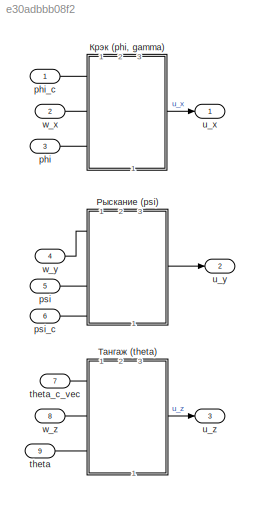
MODEL slx_e30adbbb08f2
KIND model
CONFIG AbsTol = auto
CONFIG EnableMultiTasking = off
CONFIG FixedStep = auto
CONFIG MaxStep = auto
CONFIG MinStep = auto
CONFIG RelTol = 1e-3
CONFIG SampleTimeConstraint = Unconstrained
CONFIG Solver = VariableStepAuto
CONFIG SolverName = VariableStepAuto
CONFIG StartTime = 0.0
CONFIG StopTime = 10.0
BLOCK [Inport] phi
  Port = 3
BLOCK [Inport] phi_c
BLOCK [Inport] psi
  Port = 5
BLOCK [Inport] psi_c
  Port = 6
BLOCK [Inport] theta
  Port = 9
BLOCK [Inport] theta_c_vec
  Port = 7
BLOCK [Outport] u_x
BLOCK [Outport] u_y
  Port = 2
BLOCK [Outport] u_z
  Port = 3
BLOCK [Inport] w_x
  Port = 2
BLOCK [Inport] w_y
  Port = 4
BLOCK [Inport] w_z
  Port = 8
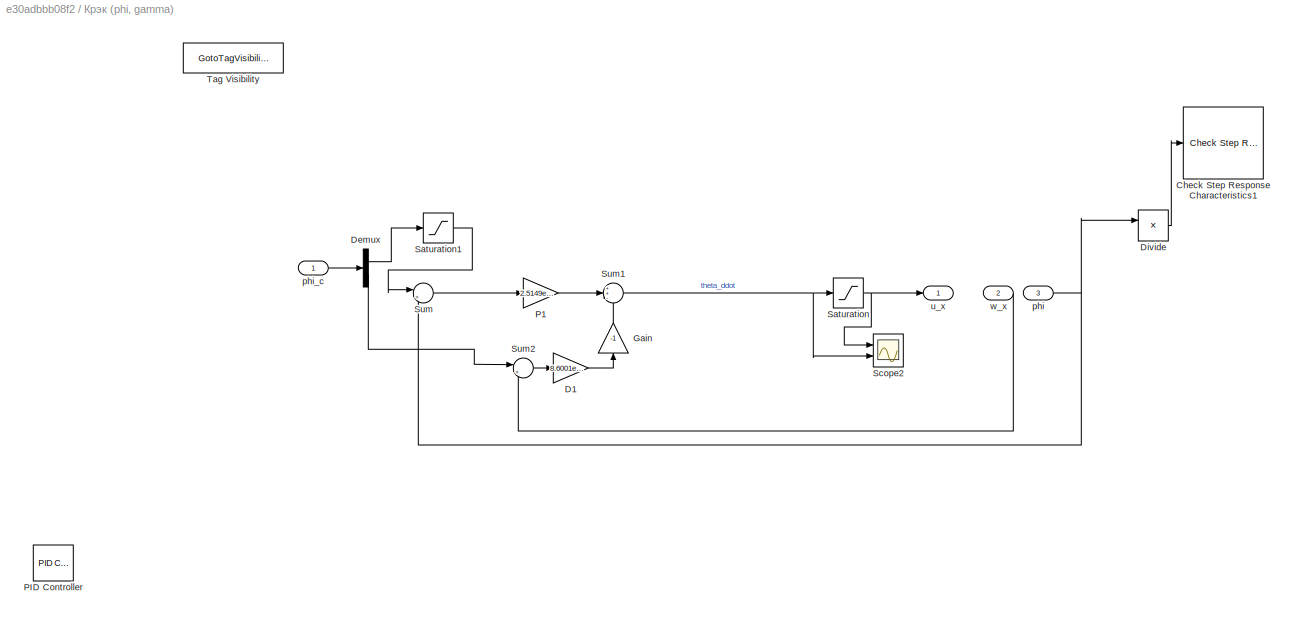
BLOCK [SubSystem] Крэк (phi, gamma)
  PortSchema = {"entries":[{"content":{"sides":[{"content":{"connectorIds":[]},"type":"ConnectorPlacement.EquallySpacedRectSide","uuid":"a258f665-a86a-4482-bd07-3187ea478656"},{"content":{"connectorIds":[],"side":"RIGHT"},"type":"ConnectorPlacement.EquallySpacedRectSide","uuid":"4cc1ffc1-e5d7-4190-ba75-89ce977e4acc"},{"content":{"connectorIds":["Out1"],"side":"TOP"},"type":"ConnectorPlacement.EquallySpacedRectSi...<+398ch>  <repeated x3 — deduplicated; at blocks: Крэк (phi, gamma), Рыскание (psi), Тангаж (theta)>
  Ports = [3, 1]
  RequestExecContextInheritance = off
BLOCK [Reference] Крэк (phi, gamma)/Check Step Response Characteristics1  REF=checkpacklib/Check Step Response 
Characteristics
  Commented = on
  InstantiateOnLoad = on
  Ports = [1]
  SourceBlock = checkpacklib/Check Step Response \nCharacteristics
  SourceProductBaseCode = CT,ID,MT,SO
  SourceType = Checks_StepResponse
BLOCK [Gain] Крэк (phi, gamma)/D1
  Gain = 8.6001e+07
BLOCK [Demux] Крэк (phi, gamma)/Demux
  Outputs = 2
  Ports = [1, 2]
BLOCK [Product] Крэк (phi, gamma)/Divide
  Commented = on
  Inputs = */
  Ports = [2, 1]
BLOCK [Gain] Крэк (phi, gamma)/Gain
  Gain = -1
  NameLocation = right
BLOCK [Gain] Крэк (phi, gamma)/P1
  Gain = 2.5149e+09
BLOCK [Reference] Крэк (phi, gamma)/PID Controller  REF=simulink/Continuous/PID Controller
  Commented = on
  Ports = [1, 1]
  SourceBlock = simulink/Continuous/PID Controller
  SourceProductBaseCode = SL
  SourceType = PID 1dof
BLOCK [Saturate] Крэк (phi, gamma)/Saturation
  LowerLimit = -MAV.Control.u_xz_max
  UpperLimit = MAV.Control.u_xz_max
BLOCK [Saturate] Крэк (phi, gamma)/Saturation1
  LowerLimit = -deg2rad(90)
  UpperLimit = deg2rad(90)
BLOCK [Scope] Крэк (phi, gamma)/Scope2
  Floating = off
  NumInputPorts = 2
  Ports = [2]
  ScopeSpecificationString = Simulink.scopes.TimeScopeBlockCfg('CurrentConfiguration', extmgr.ConfigurationSet(extmgr.Configuration('Core','General UI',true),extmgr.Configuration('Core','Source UI',true),extmgr.Configuration('Sources','WiredSimulink',true,'DataLoggingVariableName','ScopeData4'),extmgr.Configuration('Visuals','Time Domain',true,'SerializedDisplays',{struct('MinYLimReal','-938857971.23867','MaxYLimReal','274798...<+1514ch>
BLOCK [Sum] Крэк (phi, gamma)/Sum
  Inputs = |+-
  Ports = [2, 1]
BLOCK [Sum] Крэк (phi, gamma)/Sum1
  Inputs = ++-
  Ports = [3, 1]
BLOCK [Sum] Крэк (phi, gamma)/Sum2
  Inputs = |+-
  Ports = [2, 1]
BLOCK [GotoTagVisibility] Крэк (phi, gamma)/Tag Visibility
  GotoTag = phi_flush_integrator
BLOCK [Inport] Крэк (phi, gamma)/phi
  Port = 3
BLOCK [Inport] Крэк (phi, gamma)/phi_c
BLOCK [Outport] Крэк (phi, gamma)/u_x
BLOCK [Inport] Крэк (phi, gamma)/w_x
  Port = 2
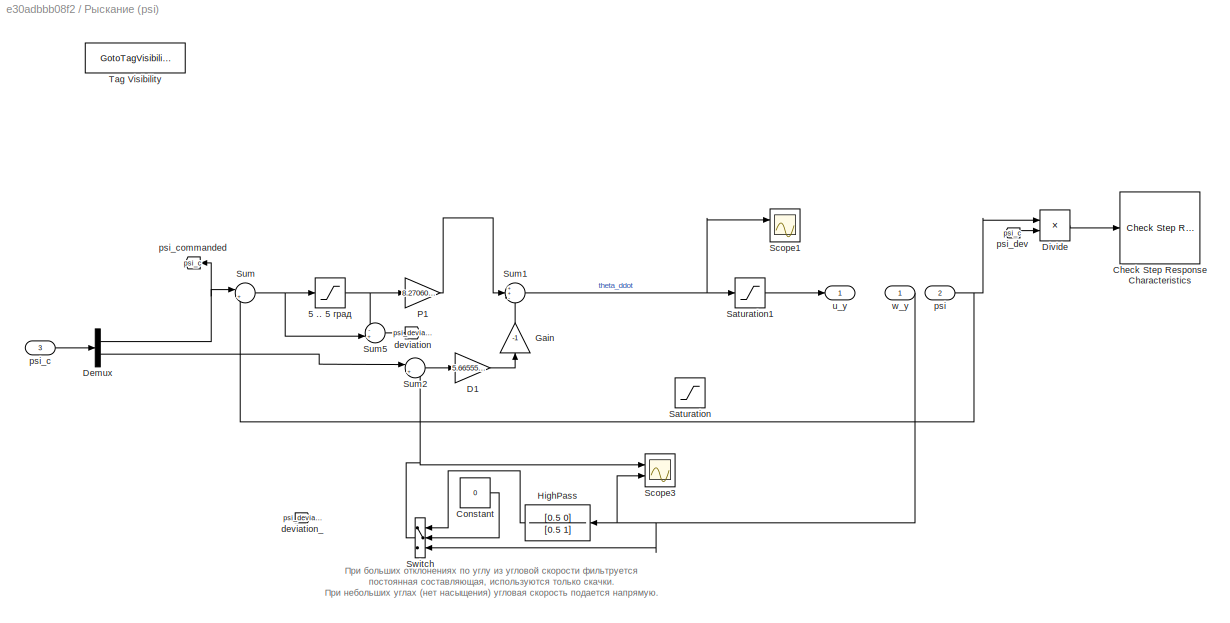
BLOCK [SubSystem] Рыскание (psi)
  Ports = [3, 1]
  RequestExecContextInheritance = off
BLOCK [Saturate] Рыскание (psi)/5 .. 5 град
  LowerLimit = -deg2rad(5)
  UpperLimit = deg2rad(5)
BLOCK [Reference] Рыскание (psi)/Check Step Response Characteristics  REF=checkpacklib/Check Step Response 
Characteristics
  Commented = on
  InstantiateOnLoad = on
  Ports = [1]
  SourceBlock = checkpacklib/Check Step Response \nCharacteristics
  SourceProductBaseCode = CT,ID,MT,SO
  SourceType = Checks_StepResponse
BLOCK [Constant] Рыскание (psi)/Constant
  Value = 0
BLOCK [Gain] Рыскание (psi)/D1
  Gain = 5.665551201959327e+08
BLOCK [Demux] Рыскание (psi)/Demux
  Outputs = 2
  Ports = [1, 2]
BLOCK [Product] Рыскание (psi)/Divide
  Commented = on
  Inputs = */
  Ports = [2, 1]
BLOCK [Gain] Рыскание (psi)/Gain
  Gain = -1
  NameLocation = right
BLOCK [TransferFcn] Рыскание (psi)/HighPass
  Denominator = [0.5 1]
  NameLocation = top
  Numerator = [0.5 0]
BLOCK [Gain] Рыскание (psi)/P1
  Gain = 8.270607507605886e+09
BLOCK [Saturate] Рыскание (psi)/Saturation
  Commented = on
  LowerLimit = -449800000
  UpperLimit = 449800000
BLOCK [Saturate] Рыскание (psi)/Saturation1
  LowerLimit = -449800000
  UpperLimit = 449800000
BLOCK [Scope] Рыскание (psi)/Scope1
  Floating = off
  NumInputPorts = 2
  Ports = [2]
  ScopeSpecificationString = Simulink.scopes.TimeScopeBlockCfg('CurrentConfiguration', extmgr.ConfigurationSet(extmgr.Configuration('Core','General UI',true),extmgr.Configuration('Core','Source UI',true),extmgr.Configuration('Sources','WiredSimulink',true,'DataLoggingVariableName','ScopeData3'),extmgr.Configuration('Visuals','Time Domain',true,'SerializedDisplays',{struct('MinYLimReal','-319240052.07808','MaxYLimReal','319973...<+1516ch>
BLOCK [Scope] Рыскание (psi)/Scope3
  Floating = off
  NumInputPorts = 2
  Ports = [2]
  ScopeSpecificationString = Simulink.scopes.TimeScopeBlockCfg('CurrentConfiguration', extmgr.ConfigurationSet(extmgr.Configuration('Core','General UI',true),extmgr.Configuration('Core','Source UI',true),extmgr.Configuration('Sources','WiredSimulink',true,'DataLoggingVariableName','ScopeData1'),extmgr.Configuration('Visuals','Time Domain',true,'SerializedDisplays',{struct('MinYLimReal','-8.42835','MaxYLimReal','19.20686','YLa...<+1442ch>
BLOCK [Sum] Рыскание (psi)/Sum
  Inputs = |+-
  Ports = [2, 1]
BLOCK [Sum] Рыскание (psi)/Sum1
  Inputs = ++-
  Ports = [3, 1]
BLOCK [Sum] Рыскание (psi)/Sum2
  Inputs = |+-
  Ports = [2, 1]
BLOCK [Sum] Рыскание (psi)/Sum5
  Inputs = -+|
  Ports = [2, 1]
BLOCK [Switch] Рыскание (psi)/Switch
  Criteria = u2 > Threshold
  InputSameDT = off
  NameLocation = top
  SaturateOnIntegerOverflow = off
BLOCK [GotoTagVisibility] Рыскание (psi)/Tag Visibility
  GotoTag = psi_flush_integrator
BLOCK [Goto] Рыскание (psi)/deviation
  GotoTag = psi_deviation_nonlinearity
BLOCK [From] Рыскание (psi)/deviation_
  GotoTag = psi_deviation_nonlinearity
  NameLocation = top
BLOCK [Inport] Рыскание (psi)/psi
  Port = 2
BLOCK [Inport] Рыскание (psi)/psi_c
  Port = 3
BLOCK [Goto] Рыскание (psi)/psi_commanded
  GotoTag = psi_c
  NameLocation = top
BLOCK [From] Рыскание (psi)/psi_dev
  GotoTag = psi_c
BLOCK [Outport] Рыскание (psi)/u_y
BLOCK [Inport] Рыскание (psi)/w_y
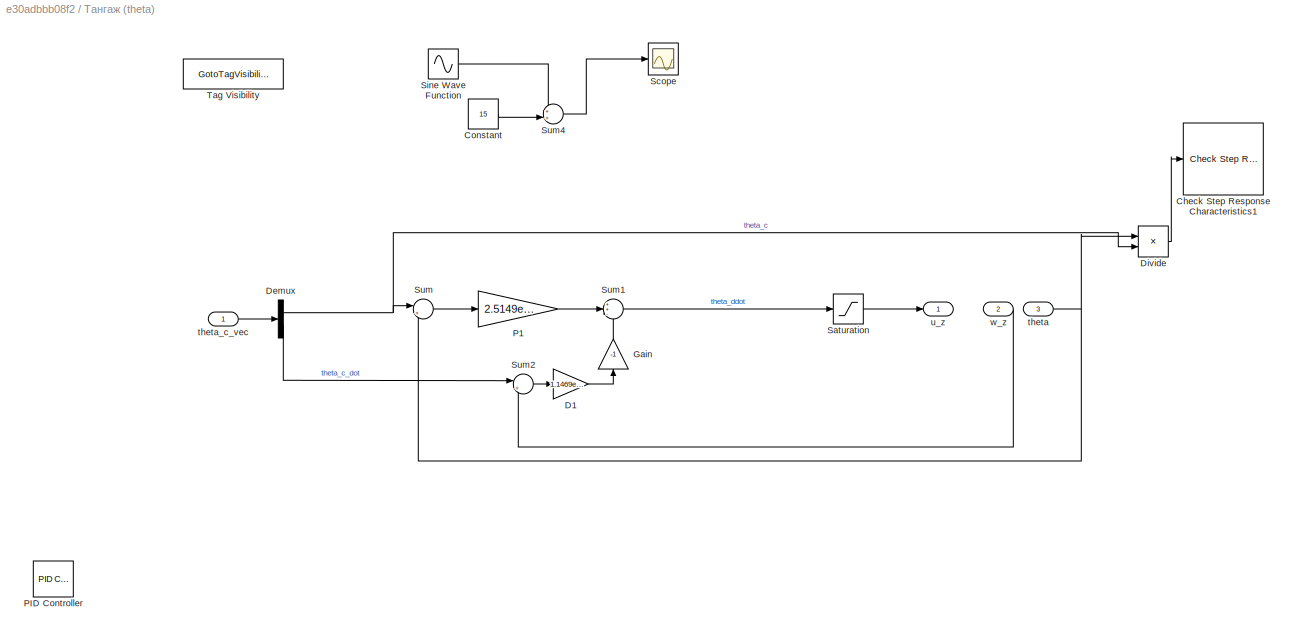
BLOCK [SubSystem] Тангаж (theta)
  Ports = [3, 1]
  RequestExecContextInheritance = off
BLOCK [Reference] Тангаж (theta)/Check Step Response Characteristics1  REF=checkpacklib/Check Step Response 
Characteristics
  Commented = on
  InstantiateOnLoad = on
  Ports = [1]
  SourceBlock = checkpacklib/Check Step Response \nCharacteristics
  SourceProductBaseCode = CT,ID,MT,SO
  SourceType = Checks_StepResponse
BLOCK [Constant] Тангаж (theta)/Constant
  Value = 15
BLOCK [Gain] Тангаж (theta)/D1
  Gain = 1.1469e+08
BLOCK [Demux] Тангаж (theta)/Demux
  Outputs = 2
  Ports = [1, 2]
BLOCK [Product] Тангаж (theta)/Divide
  Commented = on
  Inputs = */
  Ports = [2, 1]
BLOCK [Gain] Тангаж (theta)/Gain
  Gain = -1
  NameLocation = right
BLOCK [Gain] Тангаж (theta)/P1
  Gain = 2.5149e+09
BLOCK [Reference] Тангаж (theta)/PID Controller  REF=simulink/Continuous/PID Controller
  Commented = on
  Ports = [1, 1]
  SourceBlock = simulink/Continuous/PID Controller
  SourceProductBaseCode = SL
  SourceType = PID 1dof
BLOCK [Saturate] Тангаж (theta)/Saturation
  LowerLimit = -MAV.Control.u_xz_max
  UpperLimit = MAV.Control.u_xz_max
BLOCK [Scope] Тангаж (theta)/Scope
  Floating = off
  NumInputPorts = 1
  Ports = [1]
  ScopeSpecificationString = Simulink.scopes.TimeScopeBlockCfg('CurrentConfiguration', extmgr.ConfigurationSet(extmgr.Configuration('Core','General UI',true),extmgr.Configuration('Core','Source UI',true),extmgr.Configuration('Sources','WiredSimulink',true,'DataLoggingVariableName','ScopeData2'),extmgr.Configuration('Visuals','Time Domain',true,'SerializedDisplays',{struct('MinYLimReal','-3.74987','MaxYLimReal','33.74906','YLa...<+1396ch>
BLOCK [Sin] Тангаж (theta)/Sine Wave Function
  Amplitude = 15
  Frequency = 2*pi*1
  Phase = 2*pi*0.1
  Ports = [0, 1]
  SampleTime = 0
BLOCK [Sum] Тангаж (theta)/Sum
  Inputs = |+-
  Ports = [2, 1]
BLOCK [Sum] Тангаж (theta)/Sum1
  Inputs = ++-
  Ports = [3, 1]
BLOCK [Sum] Тангаж (theta)/Sum2
  Inputs = |+-
  Ports = [2, 1]
BLOCK [Sum] Тангаж (theta)/Sum4
  Inputs = ++|
  Ports = [2, 1]
BLOCK [GotoTagVisibility] Тангаж (theta)/Tag Visibility
  GotoTag = theta_flush_integrator
BLOCK [Inport] Тангаж (theta)/theta
  Port = 3
BLOCK [Inport] Тангаж (theta)/theta_c_vec
BLOCK [Outport] Тангаж (theta)/u_z
BLOCK [Inport] Тангаж (theta)/w_z
  Port = 2
ANNOTATION Рыскание (psi): При больших отклонениях по углу из угловой скорости фильтруется постоянная составляющая, используются только скачки. При небольших углах (нет насыщения) угловая скорость подается напрямую.
LINE phi:1 -> Крэк (phi, gamma):3
LINE phi_c:1 -> Крэк (phi, gamma):1
LINE psi:1 -> Рыскание (psi):2
LINE psi_c:1 -> Рыскание (psi):3
LINE theta:1 -> Тангаж (theta):3
LINE theta_c_vec:1 -> Тангаж (theta):1
LINE w_x:1 -> Крэк (phi, gamma):2
LINE w_y:1 -> Рыскание (psi):1
LINE w_z:1 -> Тангаж (theta):2
LINE Крэк (phi, gamma)/D1:1 -> Крэк (phi, gamma)/Gain:1
LINE Крэк (phi, gamma)/Demux:1 -> Крэк (phi, gamma)/Saturation1:1
LINE Крэк (phi, gamma)/Demux:2 -> Крэк (phi, gamma)/Sum2:1
LINE Крэк (phi, gamma)/Divide:1 -> Крэк (phi, gamma)/Check Step Response Characteristics1:1
LINE Крэк (phi, gamma)/Gain:1 -> Крэк (phi, gamma)/Sum1:3
LINE Крэк (phi, gamma)/P1:1 -> Крэк (phi, gamma)/Sum1:2
LINE Крэк (phi, gamma)/Saturation1:1 -> Крэк (phi, gamma)/Sum:1
NET Крэк (phi, gamma)/Saturation:1 -> Крэк (phi, gamma)/Scope2:1, Крэк (phi, gamma)/u_x:1
NET Крэк (phi, gamma)/Sum1:1 -> Крэк (phi, gamma)/Saturation:1, Крэк (phi, gamma)/Scope2:2
LINE Крэк (phi, gamma)/Sum2:1 -> Крэк (phi, gamma)/D1:1
LINE Крэк (phi, gamma)/Sum:1 -> Крэк (phi, gamma)/P1:1
NET Крэк (phi, gamma)/phi:1 -> Крэк (phi, gamma)/Divide:1, Крэк (phi, gamma)/Sum:2
LINE Крэк (phi, gamma)/phi_c:1 -> Крэк (phi, gamma)/Demux:1
LINE Крэк (phi, gamma)/w_x:1 -> Крэк (phi, gamma)/Sum2:2
LINE Крэк (phi, gamma):1 -> u_x:1
NET Рыскание (psi)/5 .. 5 град:1 -> Рыскание (psi)/P1:1, Рыскание (psi)/Sum5:1
LINE Рыскание (psi)/Constant:1 -> Рыскание (psi)/Switch:2
LINE Рыскание (psi)/D1:1 -> Рыскание (psi)/Gain:1
NET Рыскание (psi)/Demux:1 -> Рыскание (psi)/Sum:1, Рыскание (psi)/psi_commanded:1
LINE Рыскание (psi)/Demux:2 -> Рыскание (psi)/Sum2:1
LINE Рыскание (psi)/Divide:1 -> Рыскание (psi)/Check Step Response Characteristics:1
LINE Рыскание (psi)/Gain:1 -> Рыскание (psi)/Sum1:3
LINE Рыскание (psi)/HighPass:1 -> Рыскание (psi)/Switch:1
LINE Рыскание (psi)/P1:1 -> Рыскание (psi)/Sum1:2
LINE Рыскание (psi)/Saturation1:1 -> Рыскание (psi)/u_y:1
NET Рыскание (psi)/Sum1:1 -> Рыскание (psi)/Saturation1:1, Рыскание (psi)/Scope1:1
LINE Рыскание (psi)/Sum2:1 -> Рыскание (psi)/D1:1
LINE Рыскание (psi)/Sum5:1 -> Рыскание (psi)/deviation:1
NET Рыскание (psi)/Sum:1 -> Рыскание (psi)/5 .. 5 град:1, Рыскание (psi)/Sum5:2
NET Рыскание (psi)/Switch:1 -> Рыскание (psi)/Scope3:1, Рыскание (psi)/Sum2:2
NET Рыскание (psi)/psi:1 -> Рыскание (psi)/Divide:1, Рыскание (psi)/Sum:2
LINE Рыскание (psi)/psi_c:1 -> Рыскание (psi)/Demux:1
LINE Рыскание (psi)/psi_dev:1 -> Рыскание (psi)/Divide:2
NET Рыскание (psi)/w_y:1 -> Рыскание (psi)/HighPass:1, Рыскание (psi)/Scope3:2, Рыскание (psi)/Switch:3
LINE Рыскание (psi):1 -> u_y:1
LINE Тангаж (theta)/Constant:1 -> Тангаж (theta)/Sum4:2
LINE Тангаж (theta)/D1:1 -> Тангаж (theta)/Gain:1
NET Тангаж (theta)/Demux:1 -> Тангаж (theta)/Divide:2, Тангаж (theta)/Sum:1
LINE Тангаж (theta)/Demux:2 -> Тангаж (theta)/Sum2:1
LINE Тангаж (theta)/Divide:1 -> Тангаж (theta)/Check Step Response Characteristics1:1
LINE Тангаж (theta)/Gain:1 -> Тангаж (theta)/Sum1:3
LINE Тангаж (theta)/P1:1 -> Тангаж (theta)/Sum1:2
LINE Тангаж (theta)/Saturation:1 -> Тангаж (theta)/u_z:1
LINE Тангаж (theta)/Sine Wave Function:1 -> Тангаж (theta)/Sum4:1
LINE Тангаж (theta)/Sum1:1 -> Тангаж (theta)/Saturation:1
LINE Тангаж (theta)/Sum2:1 -> Тангаж (theta)/D1:1
LINE Тангаж (theta)/Sum4:1 -> Тангаж (theta)/Scope:1
LINE Тангаж (theta)/Sum:1 -> Тангаж (theta)/P1:1
NET Тангаж (theta)/theta:1 -> Тангаж (theta)/Divide:1, Тангаж (theta)/Sum:2
LINE Тангаж (theta)/theta_c_vec:1 -> Тангаж (theta)/Demux:1
LINE Тангаж (theta)/w_z:1 -> Тангаж (theta)/Sum2:2
LINE Тангаж (theta):1 -> u_z:1
note: NET lines group one-source signal fan-out (src -> all destinations, sorted); 1:1 wires keep LINE
